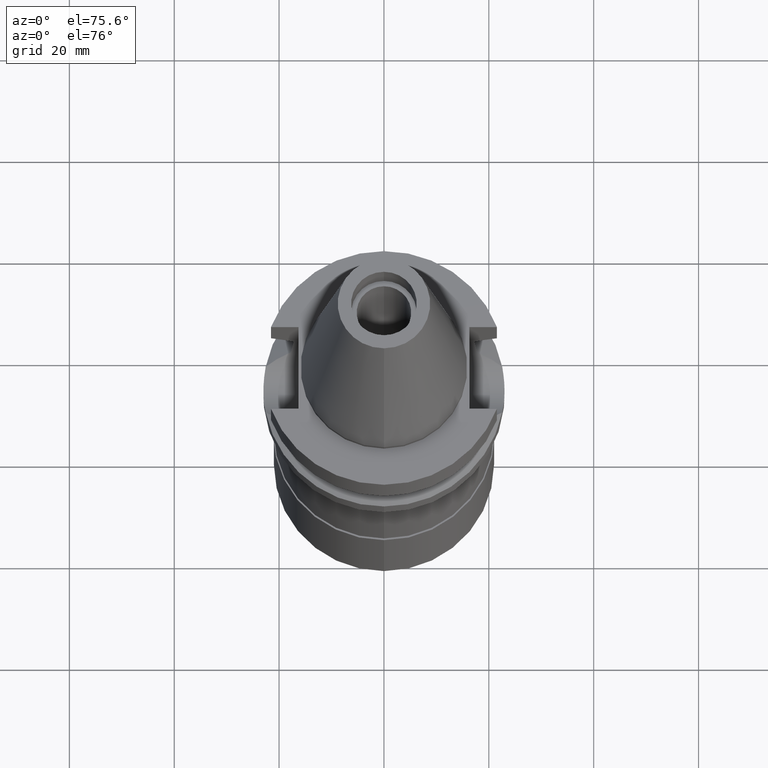
[diagram: clean part render]
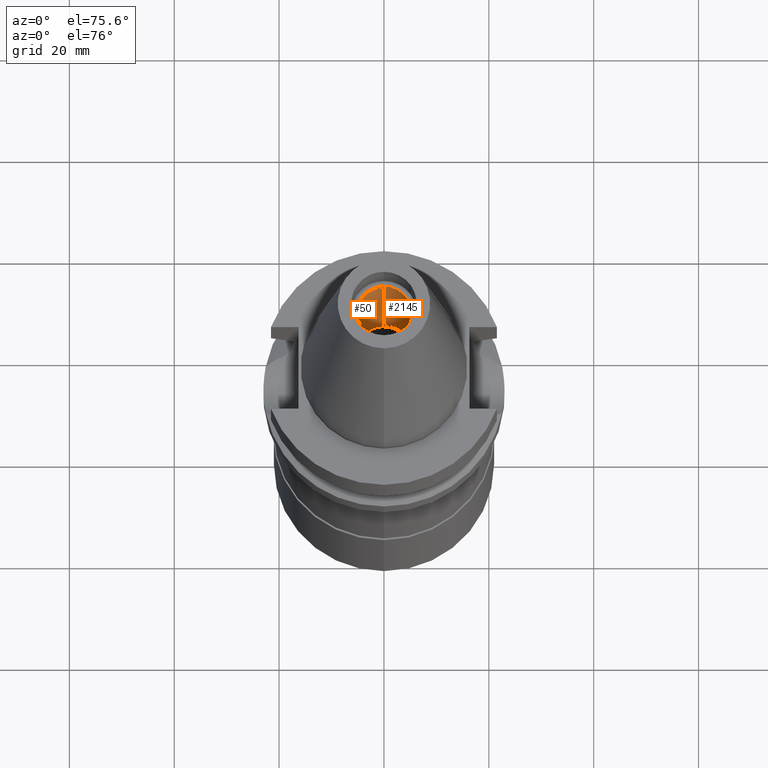
[diagram: same view with one multi-face feature highlighted, each face labeled with its STEP entity id]
A machine part, auxiliary view. The highlighted faces form ONE feature: a constant-radius fillet chain: 2 tangent blend faces with common blend radius 5.2 mm. The faces share edges in the B-rep.
Their STEP definitions:
[1] entity #2145 (Cylinder):
#262 = VERTEX_POINT ( 'NONE', #1816 ) ;
#290 = CARTESIAN_POINT ( 'NONE',  ( 0.0000000000000000000, 5.200000000000000178, 10.50000000000000000 ) ) ;
#367 = VERTEX_POINT ( 'NONE', #1674 ) ;
#559 = EDGE_CURVE ( 'NONE', #1789, #262, #2698, .T. ) ;
#571 = VECTOR ( 'NONE', #1702, 1000.000000000000000 ) ;
#605 = CARTESIAN_POINT ( 'NONE',  ( 0.0000000000000000000, 1.888344131944999946E-14, 10.50000000000000000 ) ) ;
#634 = DIRECTION ( 'NONE',  ( 0.0000000000000000000, 0.0000000000000000000, -1.000000000000000000 ) ) ;
#872 = DIRECTION ( 'NONE',  ( 0.0000000000000000000, -1.000000000000000000, 0.0000000000000000000 ) ) ;
#955 = ORIENTED_EDGE ( 'NONE', *, *, #2202, .T. ) ;
#998 = DIRECTION ( 'NONE',  ( 0.0000000000000000000, 0.0000000000000000000, 1.000000000000000000 ) ) ;
#1040 = DIRECTION ( 'NONE',  ( 0.0000000000000000000, 1.000000000000000000, 0.0000000000000000000 ) ) ;
#1161 = ORIENTED_EDGE ( 'NONE', *, *, #2247, .F. ) ;
#1167 = AXIS2_PLACEMENT_3D ( 'NONE', #1770, #1537, #2462 ) ;
#1198 = ORIENTED_EDGE ( 'NONE', *, *, #559, .T. ) ;
#1273 = AXIS2_PLACEMENT_3D ( 'NONE', #2522, #2978, #872 ) ;
#1290 = EDGE_LOOP ( 'NONE', ( #1198, #955, #2864, #1161 ) ) ;
#1342 = CYLINDRICAL_SURFACE ( 'NONE', #1273, 5.200000000000000178 ) ;
#1537 = DIRECTION ( 'NONE',  ( 0.0000000000000000000, 0.0000000000000000000, 1.000000000000000000 ) ) ;
#1674 = CARTESIAN_POINT ( 'NONE',  ( 0.0000000000000000000, -5.200000000000000178, 41.39999999999999858 ) ) ;
#1702 = DIRECTION ( 'NONE',  ( 0.0000000000000000000, 0.0000000000000000000, 1.000000000000000000 ) ) ;
#1770 = CARTESIAN_POINT ( 'NONE',  ( 0.0000000000000000000, 1.888344131944999946E-14, 41.39999999999999858 ) ) ;
#1784 = CARTESIAN_POINT ( 'NONE',  ( 0.0000000000000000000, 5.200000000000000178, 41.39999999999999858 ) ) ;
#1789 = VERTEX_POINT ( 'NONE', #1889 ) ;
#1816 = CARTESIAN_POINT ( 'NONE',  ( 0.0000000000000000000, -5.200000000000000178, 10.50000000000000000 ) ) ;
#1862 = VERTEX_POINT ( 'NONE', #1784 ) ;
#1889 = CARTESIAN_POINT ( 'NONE',  ( 0.0000000000000000000, 5.200000000000000178, 10.50000000000000000 ) ) ;
#1902 = CARTESIAN_POINT ( 'NONE',  ( 0.0000000000000000000, -5.200000000000000178, 10.50000000000000000 ) ) ;
#1956 = EDGE_CURVE ( 'NONE', #367, #1862, #2475, .T. ) ;
#2045 = VECTOR ( 'NONE', #998, 1000.000000000000000 ) ;
#2145 = ADVANCED_FACE ( 'NONE', ( #2755 ), #1342, .F. ) ;
#2202 = EDGE_CURVE ( 'NONE', #262, #367, #2570, .T. ) ;
#2247 = EDGE_CURVE ( 'NONE', #1789, #1862, #2360, .T. ) ;
#2360 = LINE ( 'NONE', #290, #571 ) ;
#2462 = DIRECTION ( 'NONE',  ( 0.0000000000000000000, -1.000000000000000000, 0.0000000000000000000 ) ) ;
#2475 = CIRCLE ( 'NONE', #1167, 5.200000000000000178 ) ;
#2522 = CARTESIAN_POINT ( 'NONE',  ( 0.0000000000000000000, 1.888344131944999946E-14, 54.19500000000000028 ) ) ;
#2570 = LINE ( 'NONE', #1902, #2045 ) ;
#2698 = CIRCLE ( 'NONE', #2795, 5.200000000000000178 ) ;
#2755 = FACE_OUTER_BOUND ( 'NONE', #1290, .T. ) ;
#2795 = AXIS2_PLACEMENT_3D ( 'NONE', #605, #634, #1040 ) ;
#2864 = ORIENTED_EDGE ( 'NONE', *, *, #1956, .T. ) ;
#2978 = DIRECTION ( 'NONE',  ( 0.0000000000000000000, 0.0000000000000000000, -1.000000000000000000 ) ) ;
[2] entity #50 (Cylinder):
#50 = ADVANCED_FACE ( 'NONE', ( #1256 ), #1496, .F. ) ;
#262 = VERTEX_POINT ( 'NONE', #1816 ) ;
#290 = CARTESIAN_POINT ( 'NONE',  ( 0.0000000000000000000, 5.200000000000000178, 10.50000000000000000 ) ) ;
#347 = DIRECTION ( 'NONE',  ( 0.0000000000000000000, 1.000000000000000000, 0.0000000000000000000 ) ) ;
#367 = VERTEX_POINT ( 'NONE', #1674 ) ;
#571 = VECTOR ( 'NONE', #1702, 1000.000000000000000 ) ;
#835 = CARTESIAN_POINT ( 'NONE',  ( 0.0000000000000000000, 1.888344131944999946E-14, 10.50000000000000000 ) ) ;
#845 = CARTESIAN_POINT ( 'NONE',  ( 0.0000000000000000000, 1.888344131944999946E-14, 41.39999999999999858 ) ) ;
#931 = ORIENTED_EDGE ( 'NONE', *, *, #1091, .T. ) ;
#942 = ORIENTED_EDGE ( 'NONE', *, *, #1898, .T. ) ;
#998 = DIRECTION ( 'NONE',  ( 0.0000000000000000000, 0.0000000000000000000, 1.000000000000000000 ) ) ;
#1075 = DIRECTION ( 'NONE',  ( 0.0000000000000000000, 0.0000000000000000000, 1.000000000000000000 ) ) ;
#1091 = EDGE_CURVE ( 'NONE', #262, #1789, #1630, .T. ) ;
#1194 = ORIENTED_EDGE ( 'NONE', *, *, #2202, .F. ) ;
#1256 = FACE_OUTER_BOUND ( 'NONE', #1877, .T. ) ;
#1316 = DIRECTION ( 'NONE',  ( 0.0000000000000000000, 0.0000000000000000000, -1.000000000000000000 ) ) ;
#1496 = CYLINDRICAL_SURFACE ( 'NONE', #2889, 5.200000000000000178 ) ;
#1630 = CIRCLE ( 'NONE', #2018, 5.200000000000000178 ) ;
#1674 = CARTESIAN_POINT ( 'NONE',  ( 0.0000000000000000000, -5.200000000000000178, 41.39999999999999858 ) ) ;
#1702 = DIRECTION ( 'NONE',  ( 0.0000000000000000000, 0.0000000000000000000, 1.000000000000000000 ) ) ;
#1752 = CIRCLE ( 'NONE', #2189, 5.200000000000000178 ) ;
#1784 = CARTESIAN_POINT ( 'NONE',  ( 0.0000000000000000000, 5.200000000000000178, 41.39999999999999858 ) ) ;
#1789 = VERTEX_POINT ( 'NONE', #1889 ) ;
#1816 = CARTESIAN_POINT ( 'NONE',  ( 0.0000000000000000000, -5.200000000000000178, 10.50000000000000000 ) ) ;
#1862 = VERTEX_POINT ( 'NONE', #1784 ) ;
#1877 = EDGE_LOOP ( 'NONE', ( #942, #1194, #931, #1973 ) ) ;
#1889 = CARTESIAN_POINT ( 'NONE',  ( 0.0000000000000000000, 5.200000000000000178, 10.50000000000000000 ) ) ;
#1898 = EDGE_CURVE ( 'NONE', #1862, #367, #1752, .T. ) ;
#1902 = CARTESIAN_POINT ( 'NONE',  ( 0.0000000000000000000, -5.200000000000000178, 10.50000000000000000 ) ) ;
#1973 = ORIENTED_EDGE ( 'NONE', *, *, #2247, .T. ) ;
#1996 = DIRECTION ( 'NONE',  ( 0.0000000000000000000, -1.000000000000000000, 0.0000000000000000000 ) ) ;
#2018 = AXIS2_PLACEMENT_3D ( 'NONE', #835, #1316, #2242 ) ;
#2045 = VECTOR ( 'NONE', #998, 1000.000000000000000 ) ;
#2189 = AXIS2_PLACEMENT_3D ( 'NONE', #845, #1075, #347 ) ;
#2202 = EDGE_CURVE ( 'NONE', #262, #367, #2570, .T. ) ;
#2242 = DIRECTION ( 'NONE',  ( 0.0000000000000000000, -1.000000000000000000, 0.0000000000000000000 ) ) ;
#2247 = EDGE_CURVE ( 'NONE', #1789, #1862, #2360, .T. ) ;
#2360 = LINE ( 'NONE', #290, #571 ) ;
#2570 = LINE ( 'NONE', #1902, #2045 ) ;
#2684 = DIRECTION ( 'NONE',  ( 0.0000000000000000000, 0.0000000000000000000, -1.000000000000000000 ) ) ;
#2697 = CARTESIAN_POINT ( 'NONE',  ( 0.0000000000000000000, 1.888344131944999946E-14, 54.19500000000000028 ) ) ;
#2889 = AXIS2_PLACEMENT_3D ( 'NONE', #2697, #2684, #1996 ) ;